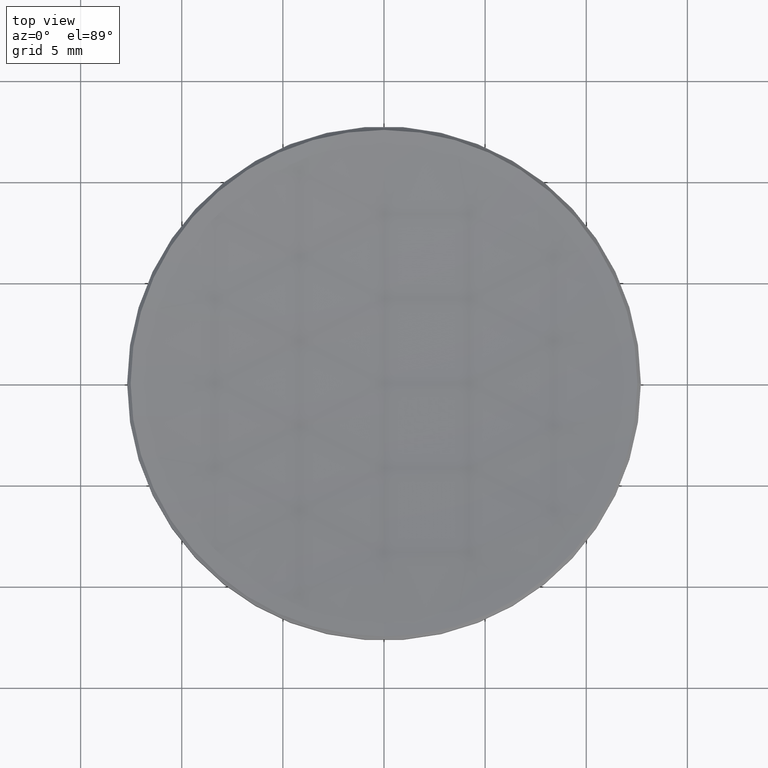
[diagram: clean part render]
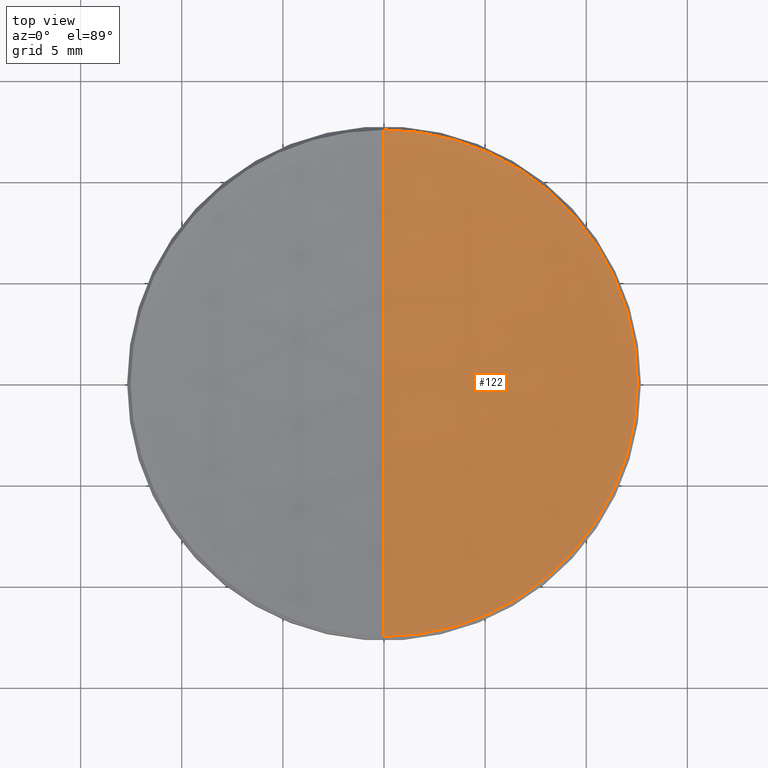
[diagram: same view with one face highlighted and labeled with its STEP entity id]
A machine part, top view. The second image highlights one B-rep face of the part: STEP entity #122.
In plain terms, the highlighted spherical surface has radius 82.23 mm.
Its self-contained STEP definition (entity closure, byte-faithful):
#13 = CARTESIAN_POINT ( 'NONE',  ( 0.000000000000000000, 12.52687420083781511, 5.973125799162120941 ) ) ;
#24 = VERTEX_POINT ( 'NONE', #143 ) ;
#34 = CARTESIAN_POINT ( 'NONE',  ( 0.000000000000000000, 5.035135314694341706E-15, 5.013356036047661668 ) ) ;
#40 = FACE_OUTER_BOUND ( 'NONE', #159, .T. ) ;
#43 = CARTESIAN_POINT ( 'NONE',  ( -1.534099639337759046E-15, -12.52687420083781511, 5.973125799162120941 ) ) ;
#44 = EDGE_CURVE ( 'NONE', #106, #180, #171, .T. ) ;
#52 = DIRECTION ( 'NONE',  ( 0.000000000000000000, 0.000000000000000000, -1.000000000000000000 ) ) ;
#62 = CARTESIAN_POINT ( 'NONE',  ( 0.000000000000000000, 0.000000000000000000, 87.24335603604764344 ) ) ;
#71 = AXIS2_PLACEMENT_3D ( 'NONE', #247, #320, #270 ) ;
#73 = DIRECTION ( 'NONE',  ( 1.000000000000000000, 0.000000000000000000, 0.000000000000000000 ) ) ;
#93 = CARTESIAN_POINT ( 'NONE',  ( 0.000000000000000000, 0.000000000000000000, 87.24335603604764344 ) ) ;
#106 = VERTEX_POINT ( 'NONE', #34 ) ;
#112 = AXIS2_PLACEMENT_3D ( 'NONE', #326, #274, #277 ) ;
#122 = ADVANCED_FACE ( 'NONE', ( #40 ), #163, .F. ) ;
#131 = VERTEX_POINT ( 'NONE', #13 ) ;
#132 = DIRECTION ( 'NONE',  ( -0.000000000000000000, -0.000000000000000000, 1.000000000000000000 ) ) ;
#143 = CARTESIAN_POINT ( 'NONE',  ( 12.52687420083785419, 1.544700537127451106E-15, 5.973125799162120941 ) ) ;
#151 = CIRCLE ( 'NONE', #252, 82.22999999999998977 ) ;
#156 = ORIENTED_EDGE ( 'NONE', *, *, #44, .T. ) ;
#157 = CIRCLE ( 'NONE', #112, 12.52687420083785419 ) ;
#159 = EDGE_LOOP ( 'NONE', ( #218, #156, #202, #175 ) ) ;
#163 = SPHERICAL_SURFACE ( 'NONE', #204, 82.22999999999998977 ) ;
#165 = DIRECTION ( 'NONE',  ( -1.000000000000000000, 0.000000000000000000, 0.000000000000000000 ) ) ;
#171 = CIRCLE ( 'NONE', #71, 82.22999999999998977 ) ;
#175 = ORIENTED_EDGE ( 'NONE', *, *, #177, .T. ) ;
#177 = EDGE_CURVE ( 'NONE', #24, #131, #157, .T. ) ;
#180 = VERTEX_POINT ( 'NONE', #43 ) ;
#184 = CARTESIAN_POINT ( 'NONE',  ( 0.000000000000000000, 0.000000000000000000, 5.973125799162120941 ) ) ;
#202 = ORIENTED_EDGE ( 'NONE', *, *, #327, .T. ) ;
#204 = AXIS2_PLACEMENT_3D ( 'NONE', #62, #165, #267 ) ;
#212 = EDGE_CURVE ( 'NONE', #106, #131, #151, .T. ) ;
#218 = ORIENTED_EDGE ( 'NONE', *, *, #212, .F. ) ;
#247 = CARTESIAN_POINT ( 'NONE',  ( 0.000000000000000000, 0.000000000000000000, 87.24335603604764344 ) ) ;
#252 = AXIS2_PLACEMENT_3D ( 'NONE', #93, #73, #52 ) ;
#267 = DIRECTION ( 'NONE',  ( 0.000000000000000000, 1.000000000000000000, 0.000000000000000000 ) ) ;
#270 = DIRECTION ( 'NONE',  ( -1.224646799147353207E-16, -1.000000000000000000, 0.000000000000000000 ) ) ;
#274 = DIRECTION ( 'NONE',  ( -0.000000000000000000, -0.000000000000000000, 1.000000000000000000 ) ) ;
#277 = DIRECTION ( 'NONE',  ( 1.000000000000000000, 0.000000000000000000, 0.000000000000000000 ) ) ;
#295 = CIRCLE ( 'NONE', #323, 12.52687420083785419 ) ;
#312 = DIRECTION ( 'NONE',  ( 1.000000000000000000, 0.000000000000000000, 0.000000000000000000 ) ) ;
#320 = DIRECTION ( 'NONE',  ( -1.000000000000000000, 1.224646799147353207E-16, 0.000000000000000000 ) ) ;
#323 = AXIS2_PLACEMENT_3D ( 'NONE', #184, #132, #312 ) ;
#326 = CARTESIAN_POINT ( 'NONE',  ( 0.000000000000000000, 0.000000000000000000, 5.973125799162120941 ) ) ;
#327 = EDGE_CURVE ( 'NONE', #180, #24, #295, .T. ) ;